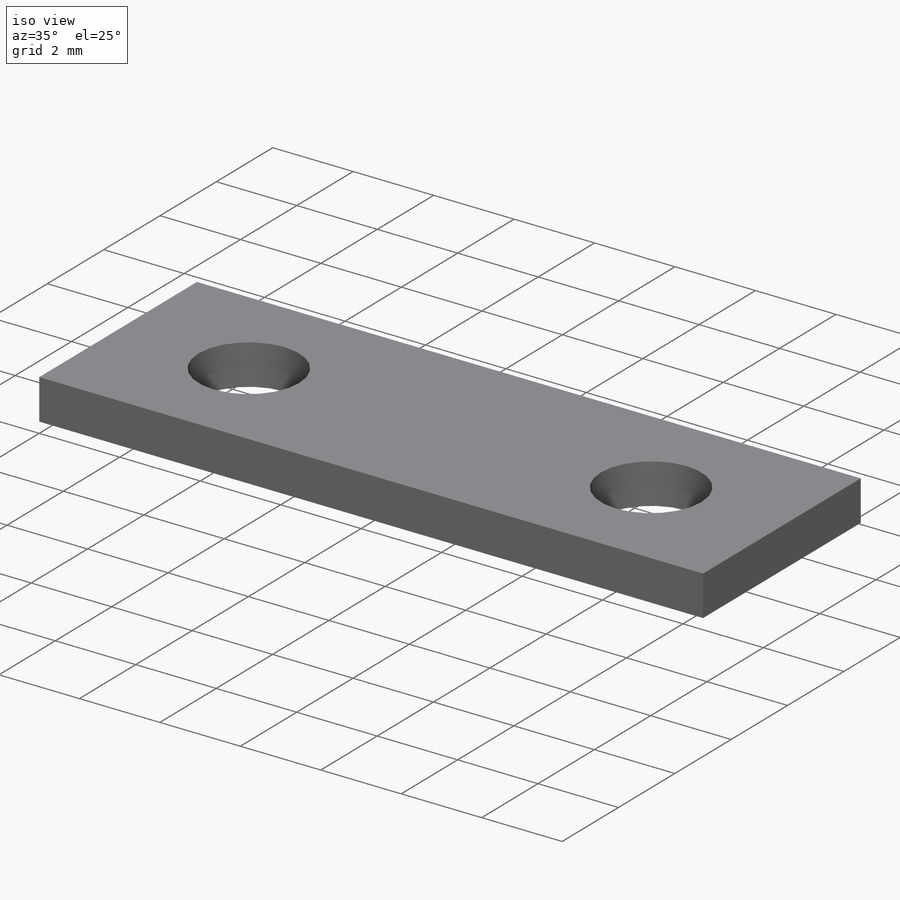
[diagram: iso view]
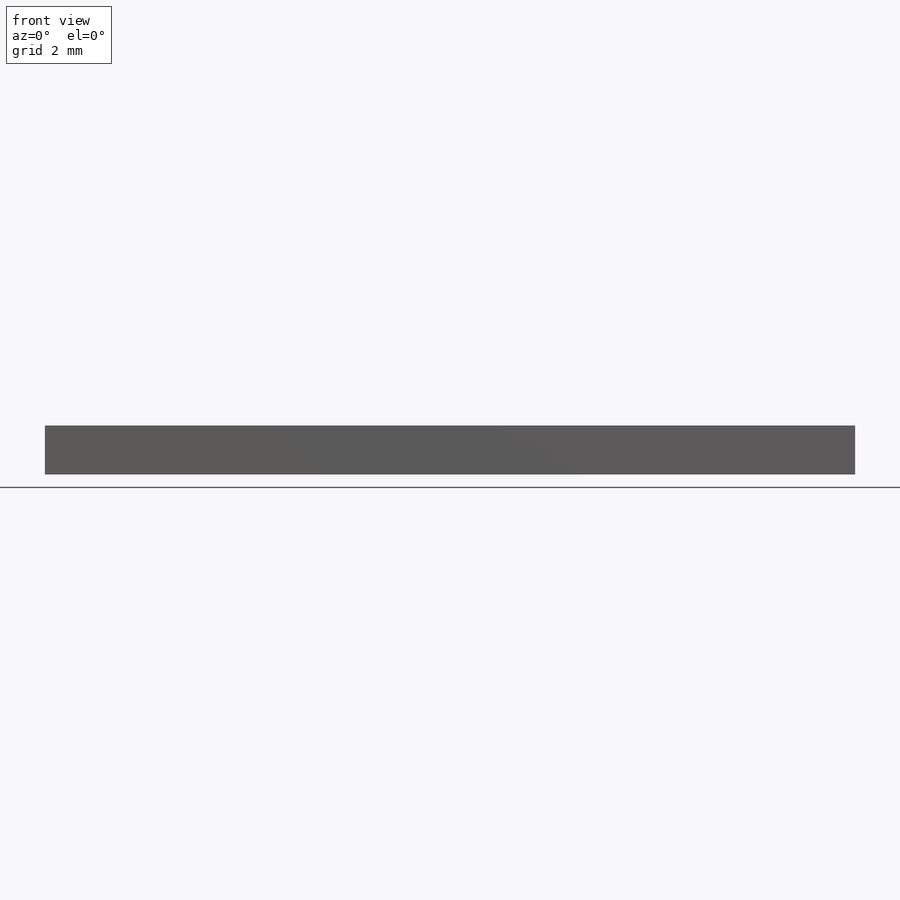
[diagram: front view]
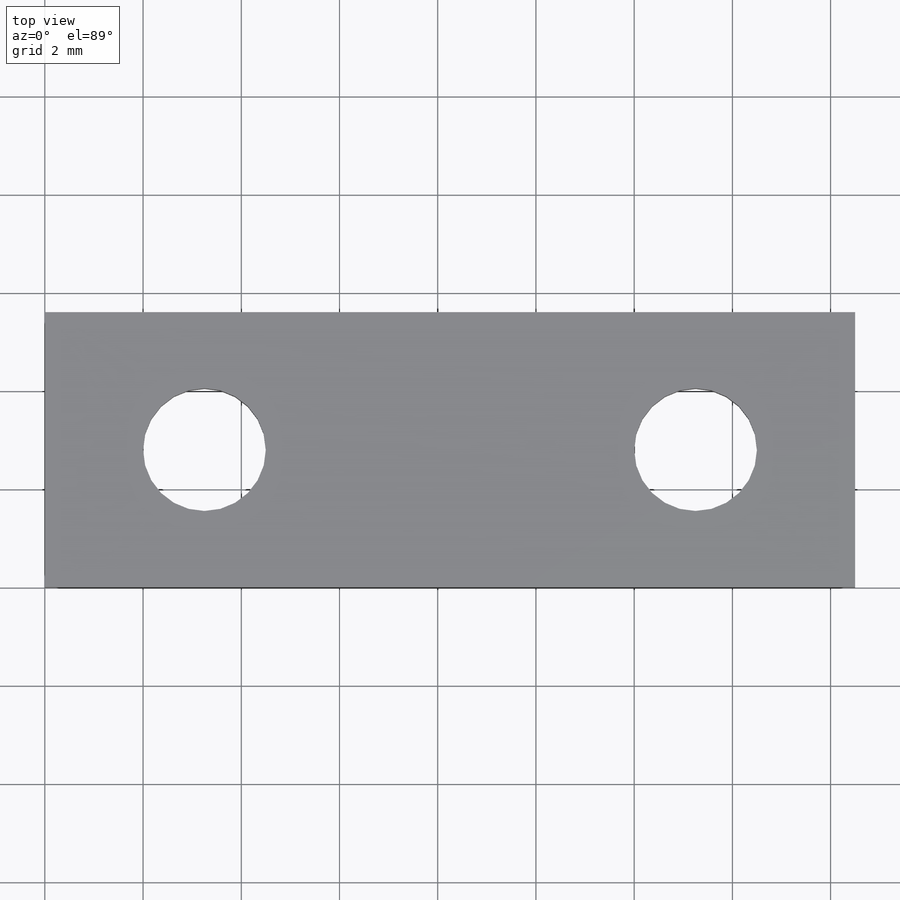
[diagram: top view]
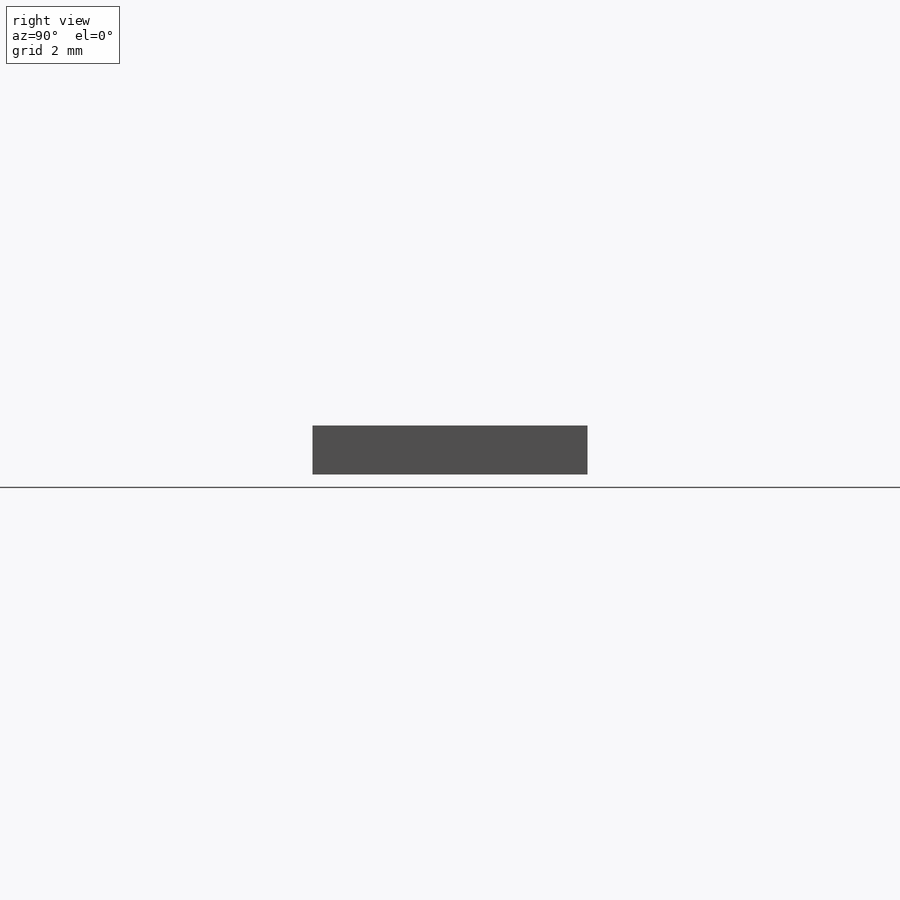
[diagram: right view]
SOLIDWORKS PART (.sldprt)
format: sldprt  version: not decoded by parser v0  size: 180,736 bytes
history: native  units: mm
features: sketch x3, thread x2, material x1, extrude x1, hole x1 (+11 scaffold rows collapsed)
feature tree (19):
  scaffold x11  (default folders/planes/origin — collapsed)
  material  "1060 Alloy"
  sketch  "Sketch1"  dims[D3=3.0mm D1=16.5mm D2=5.6mm D4=10.0mm D5=3.25mm]
  extrude  "Boss-Extrude1"  Depth=1mm
  hole  "M3x0.5 Tapped Hole3"  Diameter=2.5mm Depth=1mm
  sketch  "Sketch7"  dims[c1.D1=10.0mm c1.D2=10.0mm c2.D1=~13.501969mm c2.D2=3.25mm c3.D1=10.0mm]
  sketch  "Sketch8"  dims[hole-wizard template sketch: 60 standard entries collapsed; hole parameters kept: c18.Thru Tap Drill Depth=1.0mm]
  thread  "Hole Thread5"  Diameter=3mm  [1 undecoded]
  thread  "Hole Thread6"  Diameter=3mm  [1 undecoded]
decode coverage: 7 of 7 modeling features carry decoded parameters
note: ~ marks probable driven/reference dimensions
note: 2 parameter values undecoded
note: suppression state not decoded; provenance and decode notes live in map.json
